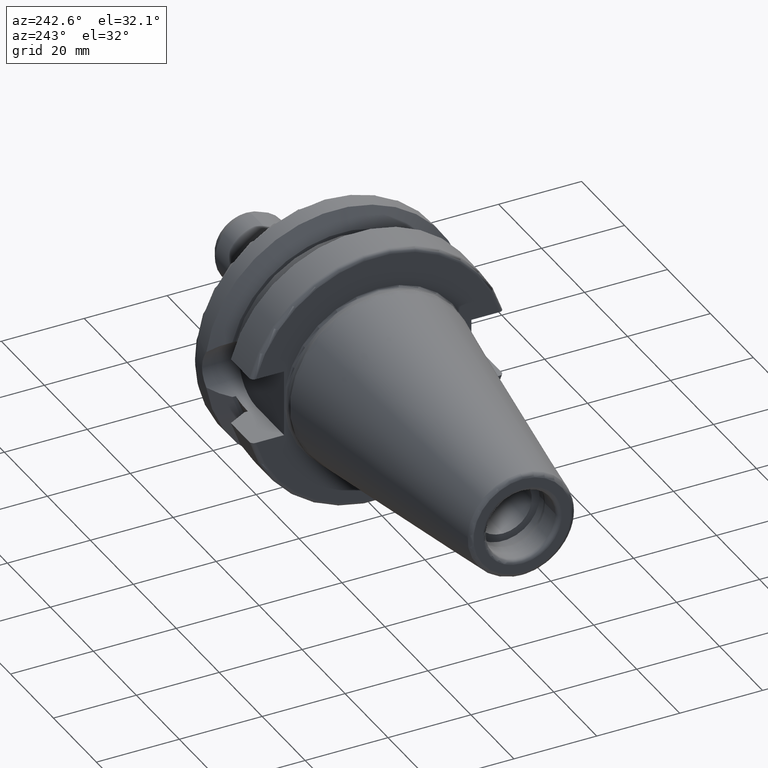
[diagram: clean part render]
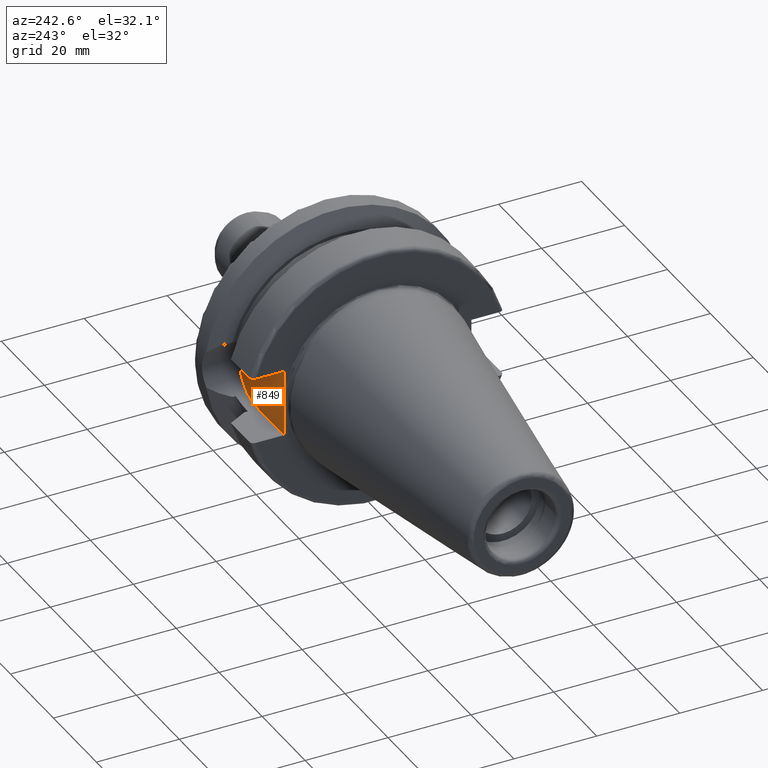
[diagram: same view with one face highlighted and labeled with its STEP entity id]
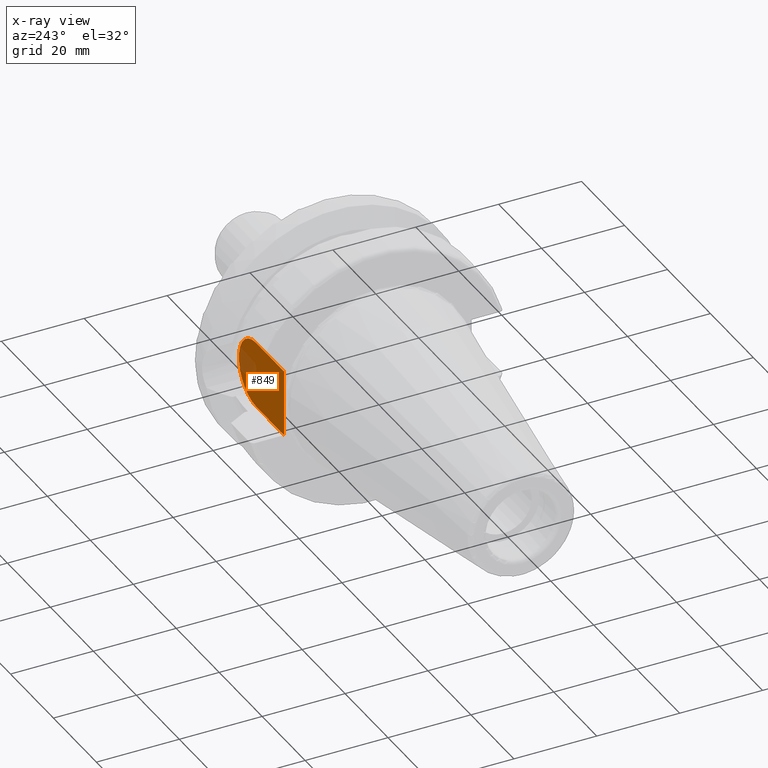
[diagram: x-ray of the same camera — body ghosted, the highlighted face saturated]
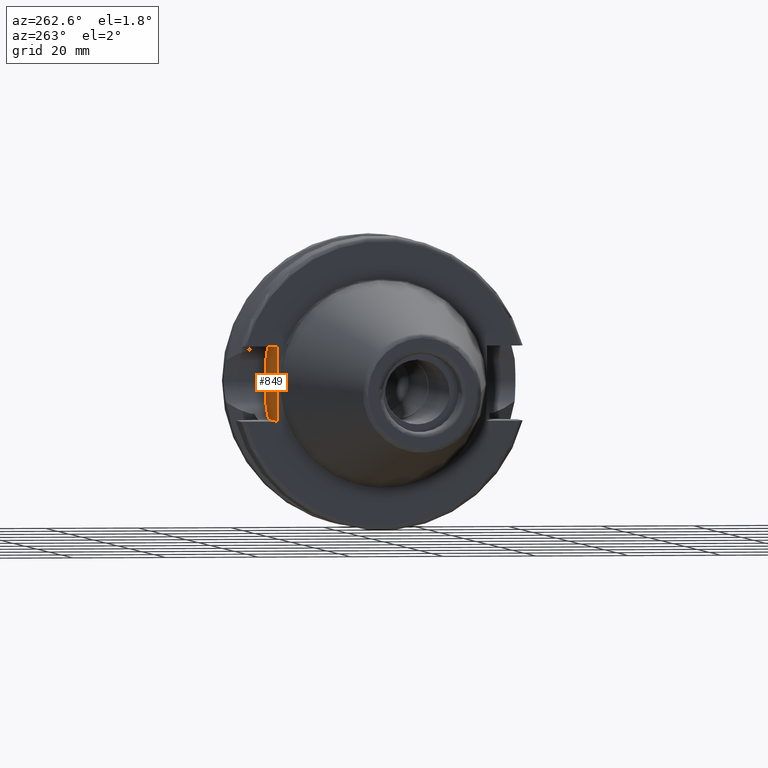
[diagram: same view with one face highlighted and labeled with its STEP entity id]
A machine part, auxiliary view. The second image highlights one B-rep face of the part: STEP entity #849.
The next image is the same camera in x-ray: the body ghosted, the highlighted face saturated — about 13% of this face is hidden behind the body in this view.
A second angle (auxiliary view) of the same face is appended — the face is thin or edge-on in the first view.
In plain terms, the highlighted planar face has unit normal (0, 1, 0).
Its self-contained STEP definition (entity closure, byte-faithful):
#28=PLANE('',#953);
#90=CIRCLE('',#950,8.05);
#162=FACE_OUTER_BOUND('',#217,.T.);
#217=EDGE_LOOP('',(#724,#725,#726,#727));
#295=LINE('',#1739,#343);
#300=LINE('',#1763,#348);
#301=LINE('',#1765,#349);
#343=VECTOR('',#1154,10.);
#348=VECTOR('',#1161,10.);
#349=VECTOR('',#1164,10.);
#411=VERTEX_POINT('',#1714);
#412=VERTEX_POINT('',#1716);
#417=VERTEX_POINT('',#1738);
#422=VERTEX_POINT('',#1761);
#518=EDGE_CURVE('',#412,#411,#90,.T.);
#524=EDGE_CURVE('',#417,#412,#295,.T.);
#531=EDGE_CURVE('',#411,#422,#300,.T.);
#532=EDGE_CURVE('',#417,#422,#301,.T.);
#724=ORIENTED_EDGE('',*,*,#531,.T.);
#725=ORIENTED_EDGE('',*,*,#532,.F.);
#726=ORIENTED_EDGE('',*,*,#524,.T.);
#727=ORIENTED_EDGE('',*,*,#518,.T.);
#849=ADVANCED_FACE('',(#162),#28,.T.);
#950=AXIS2_PLACEMENT_3D('',#1717,#1147,#1148);
#953=AXIS2_PLACEMENT_3D('',#1764,#1162,#1163);
#1147=DIRECTION('center_axis',(0.,1.,0.));
#1148=DIRECTION('ref_axis',(0.,0.,1.));
#1154=DIRECTION('',(1.,0.,8.57315076930623E-17));
#1161=DIRECTION('',(-1.,0.,-8.57315076930623E-17));
#1162=DIRECTION('center_axis',(0.,1.,0.));
#1163=DIRECTION('ref_axis',(0.,0.,1.));
#1164=DIRECTION('',(0.,0.,-1.));
#1714=CARTESIAN_POINT('',(14.95,22.6,-8.05));
#1716=CARTESIAN_POINT('',(14.95,22.6,8.05));
#1717=CARTESIAN_POINT('Origin',(14.95,22.6,0.));
#1738=CARTESIAN_POINT('',(1.99999999999999,22.6,8.05));
#1739=CARTESIAN_POINT('',(1.99999999999999,22.6,8.05));
#1761=CARTESIAN_POINT('',(1.99999999999999,22.6,-8.05));
#1763=CARTESIAN_POINT('',(14.95,22.6,-8.05));
#1764=CARTESIAN_POINT('Origin',(12.5,22.6,0.));
#1765=CARTESIAN_POINT('',(1.99999999999999,22.6,0.));